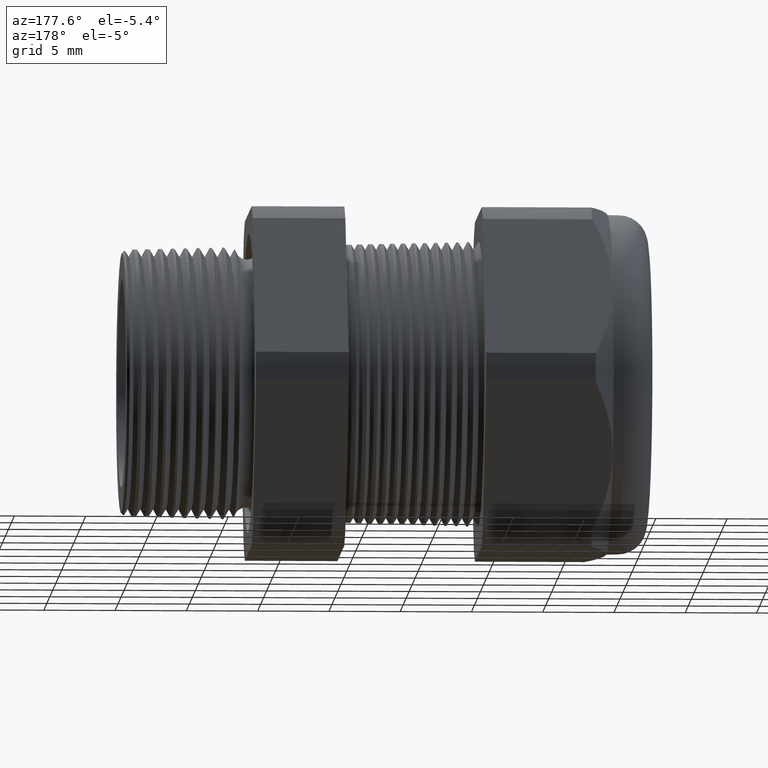
[diagram: clean part render]
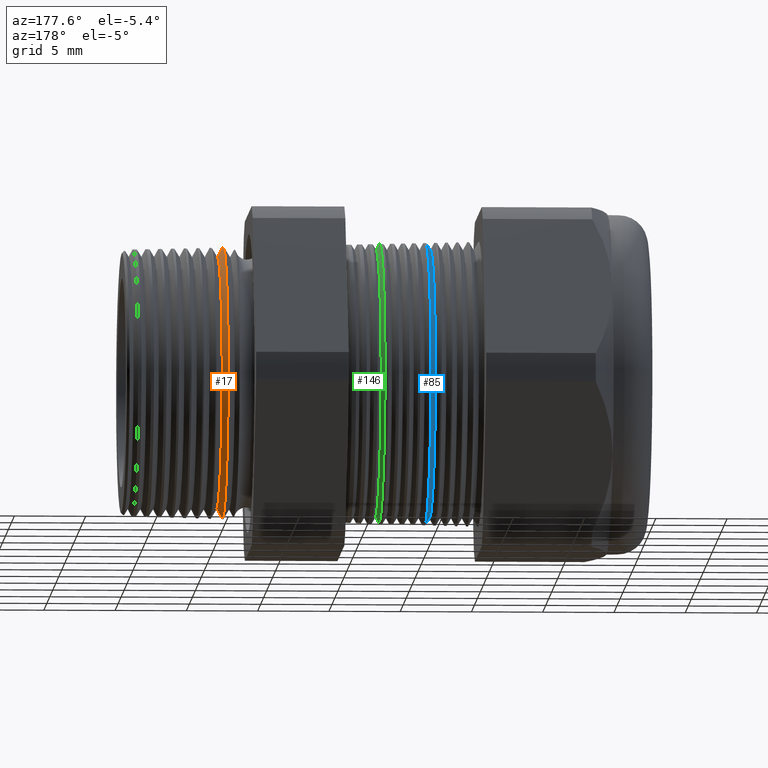
[diagram: same view with three faces highlighted in distinct colors, each labeled with its STEP entity id]
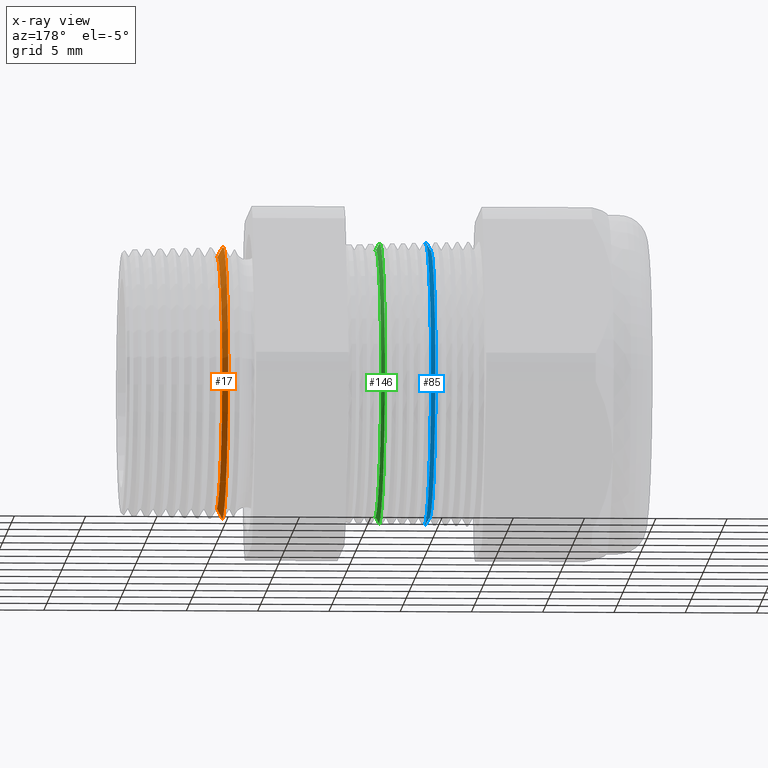
[diagram: x-ray of the same camera — body ghosted, the three highlighted faces saturated]
A machine part, auxiliary view with three faces highlighted in distinct colors.
The next image is the same camera in x-ray (body ghosted, the three faces saturated) — at least one of them is partly hidden behind the body in this view.
Their STEP definitions:

[orange] entity #17 — the highlighted conical surface has half-angle 61.5 deg.
#4 = ORIENTED_EDGE ( 'NONE', *, *, #228, .F. ) ;
#5 = ORIENTED_EDGE ( 'NONE', *, *, #16, .T. ) ;
#16 = EDGE_CURVE ( 'NONE', #243, #242, #1782, .T. ) ;
#17 = ADVANCED_FACE ( 'NONE', ( #1778 ), #1776, .T. ) ;
#227 = EDGE_CURVE ( 'NONE', #296, #237, #2186, .T. ) ;
#228 = EDGE_CURVE ( 'NONE', #243, #296, #2182, .T. ) ;
#231 = EDGE_LOOP ( 'NONE', ( #4, #5, #240, #239 ) ) ;
#237 = VERTEX_POINT ( 'NONE', #2233 ) ;
#239 = ORIENTED_EDGE ( 'NONE', *, *, #227, .F. ) ;
#240 = ORIENTED_EDGE ( 'NONE', *, *, #250, .T. ) ;
#242 = VERTEX_POINT ( 'NONE', #2232 ) ;
#243 = VERTEX_POINT ( 'NONE', #2231 ) ;
#250 = EDGE_CURVE ( 'NONE', #242, #237, #2213, .T. ) ;
#296 = VERTEX_POINT ( 'NONE', #2308 ) ;
#1772 = DIRECTION ( 'NONE',  ( 0.0000000000000000000, 0.0000000000000000000, 1.000000000000000000 ) ) ;
#1773 = DIRECTION ( 'NONE',  ( -1.000000000000000000, 0.0000000000000000000, 0.0000000000000000000 ) ) ;
#1774 = CARTESIAN_POINT ( 'NONE',  ( -0.2399999999999999600, 0.0000000000000000000, 0.0000000000000000000 ) ) ;
#1775 = AXIS2_PLACEMENT_3D ( 'NONE', #1774, #1773, #1772 ) ;
#1776 = CONICAL_SURFACE ( 'NONE', #1775, 0.3783605994438361000, 1.073377489976500100 ) ;
#1778 = FACE_OUTER_BOUND ( 'NONE', #231, .T. ) ;
#1779 = DIRECTION ( 'NONE',  ( -0.4771587602596195100, 1.076240564057387400E-016, -0.8788171126619593900 ) ) ;
#1780 = VECTOR ( 'NONE', #1779, 39.37007874015748100 ) ;
#1781 = CARTESIAN_POINT ( 'NONE',  ( -0.2399999999999999600, 4.633580970323677100E-017, -0.3783605994438361000 ) ) ;
#1782 = LINE ( 'NONE', #1781, #1780 ) ;
#2178 = DIRECTION ( 'NONE',  ( 0.0000000000000000000, 0.0000000000000000000, -1.000000000000000000 ) ) ;
#2179 = DIRECTION ( 'NONE',  ( 1.000000000000000000, 0.0000000000000000000, 0.0000000000000000000 ) ) ;
#2180 = CARTESIAN_POINT ( 'NONE',  ( -0.2234707356790751300, 0.0000000000000000000, 0.0000000000000000000 ) ) ;
#2181 = AXIS2_PLACEMENT_3D ( 'NONE', #2180, #2179, #2178 ) ;
#2182 = CIRCLE ( 'NONE', #2181, 0.3479174816500060800 ) ;
#2183 = DIRECTION ( 'NONE',  ( -0.4771587602596195100, 0.0000000000000000000, 0.8788171126619593900 ) ) ;
#2184 = VECTOR ( 'NONE', #2183, 39.37007874015748100 ) ;
#2185 = CARTESIAN_POINT ( 'NONE',  ( -0.2399999999999999600, 0.0000000000000000000, 0.3783605994438361000 ) ) ;
#2186 = LINE ( 'NONE', #2185, #2184 ) ;
#2209 = DIRECTION ( 'NONE',  ( 0.0000000000000000000, 0.0000000000000000000, 1.000000000000000000 ) ) ;
#2210 = DIRECTION ( 'NONE',  ( 1.000000000000000000, 0.0000000000000000000, 0.0000000000000000000 ) ) ;
#2211 = CARTESIAN_POINT ( 'NONE',  ( -0.2389904000387095000, 0.0000000000000000000, 0.0000000000000000000 ) ) ;
#2212 = AXIS2_PLACEMENT_3D ( 'NONE', #2211, #2210, #2209 ) ;
#2213 = CIRCLE ( 'NONE', #2212, 0.3765011476285908800 ) ;
#2231 = CARTESIAN_POINT ( 'NONE',  ( -0.2234707356790751300, 4.435784777943734200E-017, -0.3479174816500060800 ) ) ;
#2232 = CARTESIAN_POINT ( 'NONE',  ( -0.2389904000387095000, 4.611119230672950300E-017, -0.3765011476285908800 ) ) ;
#2233 = CARTESIAN_POINT ( 'NONE',  ( -0.2389904000387095000, 0.0000000000000000000, 0.3765011476285908800 ) ) ;
#2308 = CARTESIAN_POINT ( 'NONE',  ( -0.2234707356790751300, 0.0000000000000000000, 0.3479174816500060800 ) ) ;

[blue] entity #85 — the highlighted conical surface has half-angle 58.5 deg.
#74 = ORIENTED_EDGE ( 'NONE', *, *, #111, .T. ) ;
#78 = VERTEX_POINT ( 'NONE', #1858 ) ;
#79 = EDGE_LOOP ( 'NONE', ( #81, #74, #97, #106 ) ) ;
#80 = EDGE_CURVE ( 'NONE', #82, #78, #1919, .T. ) ;
#81 = ORIENTED_EDGE ( 'NONE', *, *, #80, .T. ) ;
#82 = VERTEX_POINT ( 'NONE', #1914 ) ;
#85 = ADVANCED_FACE ( 'NONE', ( #1907 ), #1905, .T. ) ;
#97 = ORIENTED_EDGE ( 'NONE', *, *, #109, .T. ) ;
#105 = EDGE_CURVE ( 'NONE', #82, #107, #1934, .T. ) ;
#106 = ORIENTED_EDGE ( 'NONE', *, *, #105, .F. ) ;
#107 = VERTEX_POINT ( 'NONE', #1930 ) ;
#109 = EDGE_CURVE ( 'NONE', #113, #107, #1924, .T. ) ;
#111 = EDGE_CURVE ( 'NONE', #78, #113, #1982, .T. ) ;
#113 = VERTEX_POINT ( 'NONE', #1977 ) ;
#1858 = CARTESIAN_POINT ( 'NONE',  ( -0.8116586839320381100, 0.0000000000000000000, 0.3696307351718083300 ) ) ;
#1902 = DIRECTION ( 'NONE',  ( 0.0000000000000000000, 0.0000000000000000000, -1.000000000000000000 ) ) ;
#1903 = DIRECTION ( 'NONE',  ( 1.000000000000000000, 0.0000000000000000000, 0.0000000000000000000 ) ) ;
#1904 = AXIS2_PLACEMENT_3D ( 'NONE', #1906, #1903, #1902 ) ;
#1905 = CONICAL_SURFACE ( 'NONE', #1904, 0.3696307351718083300, 1.021017612416700500 ) ;
#1906 = CARTESIAN_POINT ( 'NONE',  ( -0.8116586839320381100, 0.0000000000000000000, 0.0000000000000000000 ) ) ;
#1907 = FACE_OUTER_BOUND ( 'NONE', #79, .T. ) ;
#1914 = CARTESIAN_POINT ( 'NONE',  ( -0.8116586839320381100, 4.662494297100280600E-017, -0.3696307351718083300 ) ) ;
#1915 = DIRECTION ( 'NONE',  ( 0.0000000000000000000, 0.0000000000000000000, -1.000000000000000000 ) ) ;
#1916 = DIRECTION ( 'NONE',  ( 1.000000000000000000, 0.0000000000000000000, 0.0000000000000000000 ) ) ;
#1917 = CARTESIAN_POINT ( 'NONE',  ( -0.8116586839320381100, 0.0000000000000000000, 0.0000000000000000000 ) ) ;
#1918 = AXIS2_PLACEMENT_3D ( 'NONE', #1917, #1916, #1915 ) ;
#1919 = CIRCLE ( 'NONE', #1918, 0.3696307351718083300 ) ;
#1920 = DIRECTION ( 'NONE',  ( 0.0000000000000000000, 0.0000000000000000000, -1.000000000000000000 ) ) ;
#1921 = DIRECTION ( 'NONE',  ( -1.000000000000000000, 0.0000000000000000000, 0.0000000000000000000 ) ) ;
#1922 = CARTESIAN_POINT ( 'NONE',  ( -0.7984706482027744700, 0.0000000000000000000, 0.0000000000000000000 ) ) ;
#1923 = AXIS2_PLACEMENT_3D ( 'NONE', #1922, #1921, #1920 ) ;
#1924 = CIRCLE ( 'NONE', #1923, 0.3911516535265204300 ) ;
#1930 = CARTESIAN_POINT ( 'NONE',  ( -0.7984706482027744700, 4.790226204724477600E-017, -0.3911516535265203700 ) ) ;
#1931 = DIRECTION ( 'NONE',  ( 0.5224985647159337000, 0.0000000000000000000, -0.8526401643541013900 ) ) ;
#1932 = VECTOR ( 'NONE', #1931, 39.37007874015748900 ) ;
#1933 = CARTESIAN_POINT ( 'NONE',  ( -0.8116586839320381100, 0.0000000000000000000, -0.3696307351718083300 ) ) ;
#1934 = LINE ( 'NONE', #1933, #1932 ) ;
#1977 = CARTESIAN_POINT ( 'NONE',  ( -0.7984706482027744700, 0.0000000000000000000, 0.3911516535265203700 ) ) ;
#1979 = DIRECTION ( 'NONE',  ( 0.5224985647159337000, 1.044183048100723500E-016, 0.8526401643541013900 ) ) ;
#1980 = VECTOR ( 'NONE', #1979, 39.37007874015748900 ) ;
#1981 = CARTESIAN_POINT ( 'NONE',  ( -0.8116586839320381100, 4.526670966946380000E-017, 0.3696307351718083300 ) ) ;
#1982 = LINE ( 'NONE', #1981, #1980 ) ;

[green] entity #146 — the highlighted conical surface has half-angle 61.5 deg.
#146 = ADVANCED_FACE ( 'NONE', ( #2038 ), #2037, .T. ) ;
#147 = ORIENTED_EDGE ( 'NONE', *, *, #328, .F. ) ;
#161 = EDGE_LOOP ( 'NONE', ( #147, #191, #168, #346 ) ) ;
#164 = EDGE_CURVE ( 'NONE', #179, #174, #2063, .T. ) ;
#168 = ORIENTED_EDGE ( 'NONE', *, *, #164, .T. ) ;
#174 = VERTEX_POINT ( 'NONE', #2048 ) ;
#179 = VERTEX_POINT ( 'NONE', #2097 ) ;
#184 = EDGE_CURVE ( 'NONE', #325, #179, #2094, .T. ) ;
#191 = ORIENTED_EDGE ( 'NONE', *, *, #184, .T. ) ;
#319 = EDGE_CURVE ( 'NONE', #322, #174, #2391, .T. ) ;
#322 = VERTEX_POINT ( 'NONE', #2378 ) ;
#325 = VERTEX_POINT ( 'NONE', #2373 ) ;
#328 = EDGE_CURVE ( 'NONE', #325, #322, #2371, .T. ) ;
#346 = ORIENTED_EDGE ( 'NONE', *, *, #319, .F. ) ;
#2032 = DIRECTION ( 'NONE',  ( 0.0000000000000000000, 0.0000000000000000000, 1.000000000000000000 ) ) ;
#2033 = DIRECTION ( 'NONE',  ( -1.000000000000000000, 0.0000000000000000000, 0.0000000000000000000 ) ) ;
#2034 = CARTESIAN_POINT ( 'NONE',  ( -0.6754330708661420200, 0.0000000000000000000, 0.0000000000000000000 ) ) ;
#2035 = AXIS2_PLACEMENT_3D ( 'NONE', #2034, #2033, #2032 ) ;
#2037 = CONICAL_SURFACE ( 'NONE', #2035, 0.3950000000000000200, 1.073377489976500500 ) ;
#2038 = FACE_OUTER_BOUND ( 'NONE', #161, .T. ) ;
#2048 = CARTESIAN_POINT ( 'NONE',  ( -0.6715388995868788500, 0.0000000000000000000, 0.3878278287126257800 ) ) ;
#2060 = DIRECTION ( 'NONE',  ( 0.0000000000000000000, 0.0000000000000000000, 1.000000000000000000 ) ) ;
#2061 = DIRECTION ( 'NONE',  ( 1.000000000000000000, 0.0000000000000000000, 0.0000000000000000000 ) ) ;
#2062 = AXIS2_PLACEMENT_3D ( 'NONE', #2068, #2061, #2060 ) ;
#2063 = CIRCLE ( 'NONE', #2062, 0.3878278287126257800 ) ;
#2068 = CARTESIAN_POINT ( 'NONE',  ( -0.6715388995868788500, 0.0000000000000000000, 0.0000000000000000000 ) ) ;
#2091 = DIRECTION ( 'NONE',  ( -0.4771587602596191200, 1.076240564057387800E-016, -0.8788171126619595000 ) ) ;
#2092 = VECTOR ( 'NONE', #2091, 39.37007874015748100 ) ;
#2093 = CARTESIAN_POINT ( 'NONE',  ( -0.6754330708661420200, 4.837354856632045600E-017, -0.3950000000000000200 ) ) ;
#2094 = LINE ( 'NONE', #2093, #2092 ) ;
#2097 = CARTESIAN_POINT ( 'NONE',  ( -0.6715388995868788500, 4.750936425541164300E-017, -0.3878278287126257800 ) ) ;
#2367 = DIRECTION ( 'NONE',  ( 0.0000000000000000000, 0.0000000000000000000, -1.000000000000000000 ) ) ;
#2368 = DIRECTION ( 'NONE',  ( 1.000000000000000000, 0.0000000000000000000, 0.0000000000000000000 ) ) ;
#2369 = CARTESIAN_POINT ( 'NONE',  ( -0.6616586839320380800, 0.0000000000000000000, 0.0000000000000000000 ) ) ;
#2370 = AXIS2_PLACEMENT_3D ( 'NONE', #2369, #2368, #2367 ) ;
#2371 = CIRCLE ( 'NONE', #2370, 0.3696307351718083300 ) ;
#2373 = CARTESIAN_POINT ( 'NONE',  ( -0.6616586839320380800, 4.638096028739115600E-017, -0.3696307351718083300 ) ) ;
#2378 = CARTESIAN_POINT ( 'NONE',  ( -0.6616586839320380800, 0.0000000000000000000, 0.3696307351718083300 ) ) ;
#2385 = DIRECTION ( 'NONE',  ( -0.4771587602596191200, 0.0000000000000000000, 0.8788171126619595000 ) ) ;
#2386 = VECTOR ( 'NONE', #2385, 39.37007874015748100 ) ;
#2387 = CARTESIAN_POINT ( 'NONE',  ( -0.6754330708661420200, 0.0000000000000000000, 0.3950000000000000200 ) ) ;
#2391 = LINE ( 'NONE', #2387, #2386 ) ;